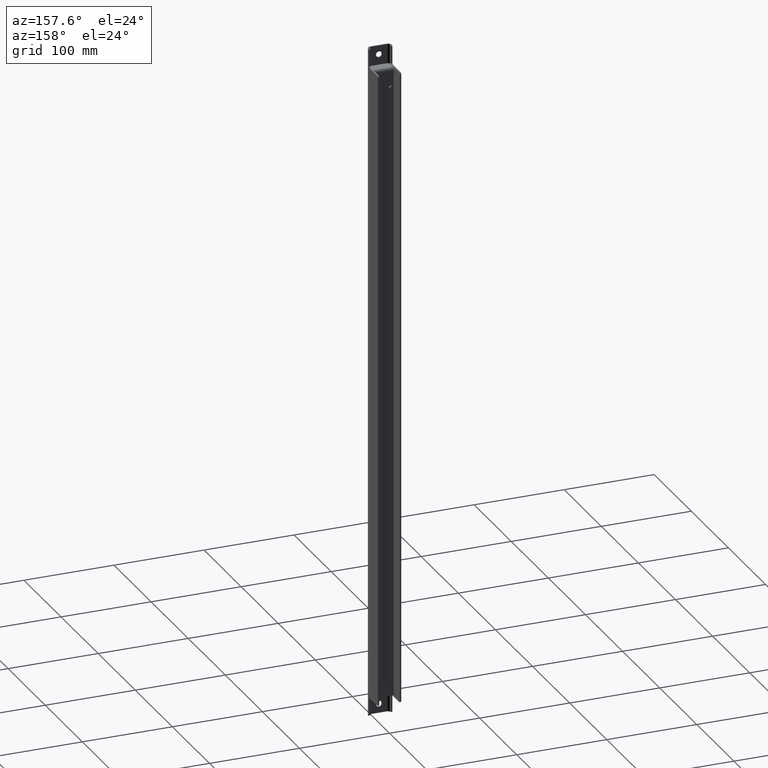
[diagram: clean part render]
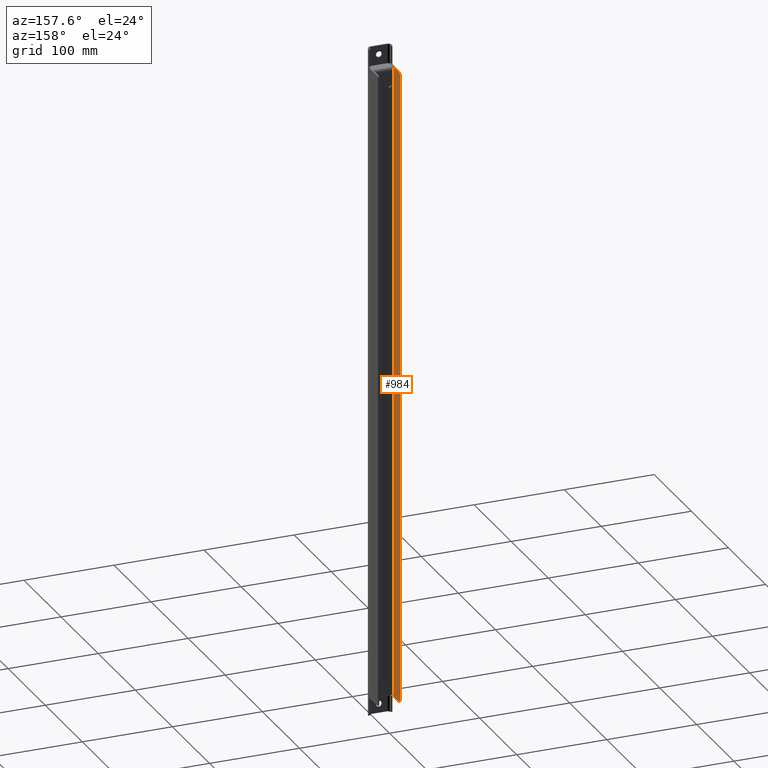
[diagram: same view with one face highlighted and labeled with its STEP entity id]
A machine part, auxiliary view. The second image highlights one B-rep face of the part: STEP entity #984.
In plain terms, the highlighted planar face has unit normal (-1, -0, 0).
Its self-contained STEP definition (entity closure, byte-faithful):
#42=LINE('',#1559,#130);
#43=LINE('',#1564,#131);
#48=LINE('',#1579,#136);
#50=LINE('',#1585,#138);
#51=LINE('',#1589,#139);
#52=LINE('',#1593,#140);
#53=LINE('',#1597,#141);
#54=LINE('',#1601,#142);
#55=LINE('',#1605,#143);
#56=LINE('',#1609,#144);
#130=VECTOR('',#1230,1000.);
#131=VECTOR('',#1237,1000.);
#136=VECTOR('',#1248,1000.);
#138=VECTOR('',#1256,1000.);
#139=VECTOR('',#1259,1000.);
#140=VECTOR('',#1262,1000.);
#141=VECTOR('',#1265,1000.);
#142=VECTOR('',#1268,1000.);
#143=VECTOR('',#1271,1000.);
#144=VECTOR('',#1274,1000.);
#205=PLANE('',#1074);
#281=ORIENTED_EDGE('',*,*,#551,.F.);
#282=ORIENTED_EDGE('',*,*,#563,.T.);
#283=ORIENTED_EDGE('',*,*,#561,.F.);
#284=ORIENTED_EDGE('',*,*,#564,.T.);
#285=ORIENTED_EDGE('',*,*,#554,.F.);
#286=ORIENTED_EDGE('',*,*,#565,.F.);
#287=ORIENTED_EDGE('',*,*,#566,.T.);
#288=ORIENTED_EDGE('',*,*,#567,.T.);
#289=ORIENTED_EDGE('',*,*,#568,.T.);
#290=ORIENTED_EDGE('',*,*,#569,.T.);
#291=ORIENTED_EDGE('',*,*,#570,.T.);
#292=ORIENTED_EDGE('',*,*,#571,.T.);
#293=ORIENTED_EDGE('',*,*,#572,.T.);
#294=ORIENTED_EDGE('',*,*,#573,.T.);
#295=ORIENTED_EDGE('',*,*,#574,.T.);
#296=ORIENTED_EDGE('',*,*,#575,.T.);
#297=ORIENTED_EDGE('',*,*,#576,.T.);
#298=ORIENTED_EDGE('',*,*,#577,.F.);
#551=EDGE_CURVE('',#695,#696,#42,.T.);
#554=EDGE_CURVE('',#697,#698,#43,.T.);
#561=EDGE_CURVE('',#703,#704,#48,.T.);
#563=EDGE_CURVE('',#695,#704,#773,.T.);
#564=EDGE_CURVE('',#703,#698,#774,.T.);
#565=EDGE_CURVE('',#705,#697,#50,.T.);
#566=EDGE_CURVE('',#705,#706,#775,.T.);
#567=EDGE_CURVE('',#706,#707,#51,.T.);
#568=EDGE_CURVE('',#707,#708,#776,.T.);
#569=EDGE_CURVE('',#708,#709,#52,.T.);
#570=EDGE_CURVE('',#709,#710,#777,.T.);
#571=EDGE_CURVE('',#710,#711,#53,.T.);
#572=EDGE_CURVE('',#711,#712,#778,.T.);
#573=EDGE_CURVE('',#712,#713,#54,.T.);
#574=EDGE_CURVE('',#713,#714,#779,.T.);
#575=EDGE_CURVE('',#714,#715,#55,.T.);
#576=EDGE_CURVE('',#715,#716,#780,.T.);
#577=EDGE_CURVE('',#696,#716,#56,.T.);
#695=VERTEX_POINT('',#1558);
#696=VERTEX_POINT('',#1560);
#697=VERTEX_POINT('',#1565);
#698=VERTEX_POINT('',#1566);
#703=VERTEX_POINT('',#1578);
#704=VERTEX_POINT('',#1580);
#705=VERTEX_POINT('',#1586);
#706=VERTEX_POINT('',#1588);
#707=VERTEX_POINT('',#1590);
#708=VERTEX_POINT('',#1592);
#709=VERTEX_POINT('',#1594);
#710=VERTEX_POINT('',#1596);
#711=VERTEX_POINT('',#1598);
#712=VERTEX_POINT('',#1600);
#713=VERTEX_POINT('',#1602);
#714=VERTEX_POINT('',#1604);
#715=VERTEX_POINT('',#1606);
#716=VERTEX_POINT('',#1608);
#773=CIRCLE('',#1075,3.);
#774=CIRCLE('',#1076,3.);
#775=CIRCLE('',#1077,2.);
#776=CIRCLE('',#1078,2.);
#777=CIRCLE('',#1079,2.);
#778=CIRCLE('',#1080,2.);
#779=CIRCLE('',#1081,2.);
#780=CIRCLE('',#1082,2.);
#829=EDGE_LOOP('',(#281,#282,#283,#284,#285,#286,#287,#288,#289,#290,#291,
#292,#293,#294,#295,#296,#297,#298));
#897=FACE_BOUND('',#829,.T.);
#984=ADVANCED_FACE('',(#897),#205,.F.);
#1074=AXIS2_PLACEMENT_3D('',#1582,#1250,#1251);
#1075=AXIS2_PLACEMENT_3D('',#1583,#1252,#1253);
#1076=AXIS2_PLACEMENT_3D('',#1584,#1254,#1255);
#1077=AXIS2_PLACEMENT_3D('',#1587,#1257,#1258);
#1078=AXIS2_PLACEMENT_3D('',#1591,#1260,#1261);
#1079=AXIS2_PLACEMENT_3D('',#1595,#1263,#1264);
#1080=AXIS2_PLACEMENT_3D('',#1599,#1266,#1267);
#1081=AXIS2_PLACEMENT_3D('',#1603,#1269,#1270);
#1082=AXIS2_PLACEMENT_3D('',#1607,#1272,#1273);
#1230=DIRECTION('',(-2.40952073044229E-16,-1.,8.6117241928882E-15));
#1237=DIRECTION('',(4.06163832661068E-16,1.,1.96182842258948E-15));
#1248=DIRECTION('',(1.21257418434899E-16,3.32494788514936E-15,1.));
#1250=DIRECTION('',(-1.,-3.10099449920508E-15,3.32185076179632E-17));
#1251=DIRECTION('',(3.10099449920508E-15,-1.,-1.66533453693773E-16));
#1252=DIRECTION('',(-1.,-3.10099449920508E-15,3.32185076179632E-17));
#1253=DIRECTION('',(3.10099449920508E-15,-1.,0.));
#1254=DIRECTION('',(-1.,-3.10099449920508E-15,3.32185076179632E-17));
#1255=DIRECTION('',(3.10099449920508E-15,-1.,0.));
#1256=DIRECTION('',(3.32185076179638E-17,-1.43403807347416E-16,1.));
#1257=DIRECTION('',(1.,3.10099449920508E-15,-3.32185076179632E-17));
#1258=DIRECTION('',(3.06328311929254E-15,-1.,-1.66533453693773E-16));
#1259=DIRECTION('',(3.32185076179638E-17,-1.66533453693773E-16,1.));
#1260=DIRECTION('',(-1.,-3.10099449920508E-15,3.32185076179632E-17));
#1261=DIRECTION('',(3.06328311929254E-15,-1.,-1.66533453693773E-16));
#1262=DIRECTION('',(-3.10099449920508E-15,1.,1.66533453693773E-16));
#1263=DIRECTION('',(1.,3.10099449920508E-15,-3.32185076179632E-17));
#1264=DIRECTION('',(3.06328311929254E-15,-1.,-1.66533453693773E-16));
#1265=DIRECTION('',(3.32185076179638E-17,-1.66533453693773E-16,1.));
#1266=DIRECTION('',(1.,3.10099449920508E-15,-3.32185076179632E-17));
#1267=DIRECTION('',(3.06328311929255E-15,-1.,-1.66533453693773E-16));
#1268=DIRECTION('',(3.10099449920508E-15,-1.,-1.66533453693773E-16));
#1269=DIRECTION('',(-1.,-3.10099449920508E-15,3.32185076179632E-17));
#1270=DIRECTION('',(3.06328311929254E-15,-1.,-1.66533453693773E-16));
#1271=DIRECTION('',(3.32185076179639E-17,-4.2624633981144E-17,1.));
#1272=DIRECTION('',(1.,3.10099449920508E-15,-3.32185076179632E-17));
#1273=DIRECTION('',(3.06328311929254E-15,-1.,-1.66533453693773E-16));
#1274=DIRECTION('',(3.32185076179638E-17,-1.43403807347416E-16,1.));
#1558=CARTESIAN_POINT('',(-11.5,-19.4999999999985,353.5));
#1559=CARTESIAN_POINT('',(-11.4999999999999,-16.4999999999967,353.5));
#1560=CARTESIAN_POINT('',(-11.4999999999999,-26.0000000000002,353.5));
#1564=CARTESIAN_POINT('',(-11.4999999999999,-16.4999999999959,-353.5));
#1565=CARTESIAN_POINT('',(-11.4999999999999,-25.9999999999999,-353.5));
#1566=CARTESIAN_POINT('',(-11.4999999999999,-19.499999999999,-353.5));
#1578=CARTESIAN_POINT('',(-11.4999999999999,-16.499999999999,-350.5));
#1579=CARTESIAN_POINT('',(-11.4999999999999,-16.4999999999978,350.5));
#1580=CARTESIAN_POINT('',(-11.4999999999999,-16.4999999999978,350.5));
#1582=CARTESIAN_POINT('',(-11.4999999999999,-28.5000000000002,-3.53821137294295E-15));
#1583=CARTESIAN_POINT('',(-11.5,-19.4999999999986,350.5));
#1584=CARTESIAN_POINT('',(-11.4999999999999,-19.499999999999,-350.5));
#1585=CARTESIAN_POINT('',(-11.4999999999999,-26.0000000000002,-375.));
#1586=CARTESIAN_POINT('',(-11.4999999999999,-26.,-375.));
#1587=CARTESIAN_POINT('',(-11.4999999999999,-25.9999999999999,-373.));
#1588=CARTESIAN_POINT('',(-11.4999999999999,-23.9999999999999,-373.));
#1589=CARTESIAN_POINT('',(-11.4999999999999,-24.0000000000002,125.));
#1590=CARTESIAN_POINT('',(-11.5,-24.0000000000002,-356.));
#1591=CARTESIAN_POINT('',(-11.4999999999999,-21.9999999999999,-356.));
#1592=CARTESIAN_POINT('',(-11.4999999999999,-21.9999999999999,-354.));
#1593=CARTESIAN_POINT('',(-11.4999999999999,-28.5,-354.));
#1594=CARTESIAN_POINT('',(-11.5,-2.00000000000001,-354.));
#1595=CARTESIAN_POINT('',(-11.5000000000001,-2.00000000000005,-352.));
#1596=CARTESIAN_POINT('',(-11.5000000000001,-5.03069808033274E-14,-352.));
#1597=CARTESIAN_POINT('',(-11.5000000000002,-3.33066907387547E-13,2.92058062013812E-16));
#1598=CARTESIAN_POINT('',(-11.5000000000002,-3.91686683087755E-13,352.));
#1599=CARTESIAN_POINT('',(-11.5000000000001,-2.00000000000035,352.));
#1600=CARTESIAN_POINT('',(-11.5000000000001,-2.00000000000035,354.));
#1601=CARTESIAN_POINT('',(-11.4999999999999,-28.5000000000003,354.));
#1602=CARTESIAN_POINT('',(-11.4999999999999,-22.0000000000002,354.));
#1603=CARTESIAN_POINT('',(-11.4999999999999,-22.0000000000002,356.));
#1604=CARTESIAN_POINT('',(-11.4999999999999,-24.0000000000002,356.));
#1605=CARTESIAN_POINT('',(-11.4999999999999,-24.0000000000002,125.));
#1606=CARTESIAN_POINT('',(-11.4999999999999,-24.0000000000002,373.));
#1607=CARTESIAN_POINT('',(-11.4999999999999,-26.0000000000002,373.));
#1608=CARTESIAN_POINT('',(-11.4999999999999,-26.0000000000002,375.));
#1609=CARTESIAN_POINT('',(-11.4999999999999,-26.0000000000002,-125.));